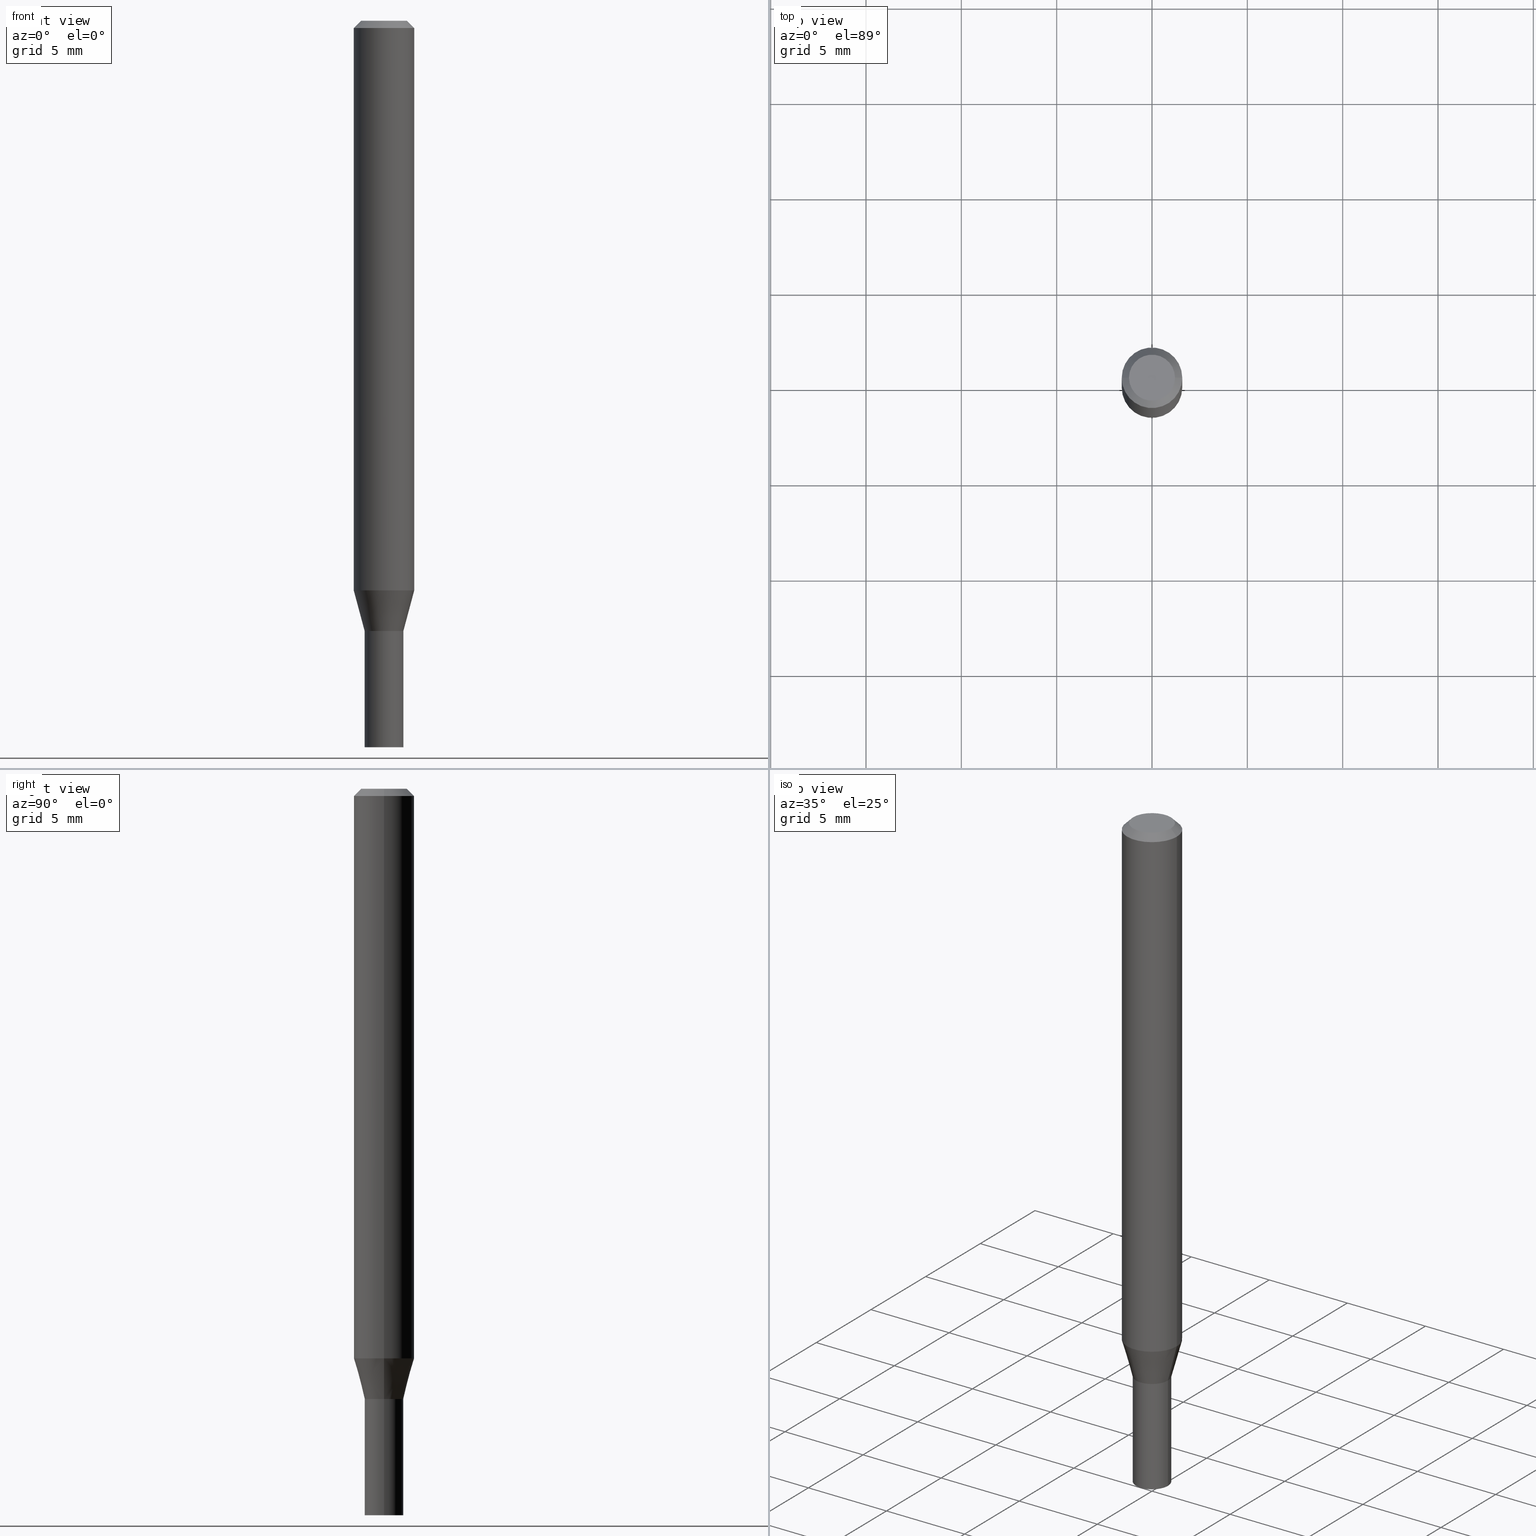
[diagram: canonical four-view strip — front | top / right | iso, engineering-drawing reading convention]
A machine part, canonical four-view strip (front | top / right | iso — engineering-drawing reading convention). The complete STEP part file that produces these views, byte-faithful:
ISO-10303-21;
HEADER;
FILE_DESCRIPTION (( 'STEP AP203' ),
    '1' );
FILE_NAME ('04172.STEP',
    '2024-03-14T17:11:14',
    ( '' ),
    ( '' ),
    'SwSTEP 2.0',
    'SolidWorks 2023',
    '' );
FILE_SCHEMA (( 'CONFIG_CONTROL_DESIGN' ));
ENDSEC;

DATA;
#1 = DIRECTION ( 'NONE',  ( -2.445468806185136597E-29, 3.491481338843145583E-15, 1.000000000000000000 ) ) ;
#2 = EDGE_LOOP ( 'NONE', ( #269, #187, #333, #446 ) ) ;
#3 = CARTESIAN_POINT ( 'NONE',  ( 3.668203209277705088E-31, -5.237222008264718399E-17, -0.01499999999999999944 ) ) ;
#4 = CLOSED_SHELL ( 'NONE', ( #90, #439, #376, #343 ) ) ;
#5 = VERTEX_POINT ( 'NONE', #423 ) ;
#6 = DIRECTION ( 'NONE',  ( 1.000000000000000000, -6.982962677686259611E-15, 0.000000000000000000 ) ) ;
#7 = CARTESIAN_POINT ( 'NONE',  ( 0.000000000000000000, 0.000000000000000000, 0.000000000000000000 ) ) ;
#8 = DIRECTION ( 'NONE',  ( 1.000000000000000000, -6.982962677686265922E-15, 4.876176775795935793E-29 ) ) ;
#9 = EDGE_CURVE ( 'NONE', #460, #421, #358, .T. ) ;
#10 = ORIENTED_EDGE ( 'NONE', *, *, #302, .T. ) ;
#11 = CARTESIAN_POINT ( 'NONE',  ( 3.081290695793272291E-29, -4.399266486942364120E-15, -1.260000000000000231 ) ) ;
#12 = COORDINATED_UNIVERSAL_TIME_OFFSET ( 5, 0, .BEHIND. ) ;
#13 = DIRECTION ( 'NONE',  ( 1.000000000000000000, -6.982962677686267499E-15, 4.852736867747366768E-29 ) ) ;
#14 = AXIS2_PLACEMENT_3D ( 'NONE', #225, #28, #289 ) ;
#15 = VECTOR ( 'NONE', #232, 39.37007874015748143 ) ;
#16 = DATE_AND_TIME ( #243, #429 ) ;
#17 = EDGE_CURVE ( 'NONE', #111, #280, #323, .T. ) ;
#18 = ORIENTED_EDGE ( 'NONE', *, *, #9, .F. ) ;
#19 = CIRCLE ( 'NONE', #210, 0.03950000000000000039 ) ;
#20 = AXIS2_PLACEMENT_3D ( 'NONE', #3, #157, #437 ) ;
#21 = ORIENTED_EDGE ( 'NONE', *, *, #171, .T. ) ;
#22 = CARTESIAN_POINT ( 'NONE',  ( 0.03999999999999964695, -4.676839253380391865E-15, -1.259500000000000286 ) ) ;
#23 = CC_DESIGN_APPROVAL ( #259, ( #173 ) ) ;
#24 = DIMENSIONAL_EXPONENTS ( 1.000000000000000000, 0.000000000000000000, 0.000000000000000000, 0.000000000000000000, 0.000000000000000000, 0.000000000000000000, 0.000000000000000000 ) ;
#25 = ORIENTED_EDGE ( 'NONE', *, *, #117, .T. ) ;
#26 = DIRECTION ( 'NONE',  ( 1.000000000000000000, -6.982962677686259611E-15, 0.000000000000000000 ) ) ;
#27 = DIRECTION ( 'NONE',  ( -2.445468806185136597E-29, 3.491481338843145583E-15, 1.000000000000000000 ) ) ;
#28 = DIRECTION ( 'NONE',  ( -2.445468806185136597E-29, 3.491481338843145583E-15, 1.000000000000000000 ) ) ;
#29 = VECTOR ( 'NONE', #33, 39.37007874015748143 ) ;
#30 = AXIS2_PLACEMENT_3D ( 'NONE', #207, #340, #341 ) ;
#31 = DIRECTION ( 'NONE',  ( -0.7071067811865530128, 2.468850131082314253E-15, -0.7071067811865420216 ) ) ;
#32 = CARTESIAN_POINT ( 'NONE',  ( -0.06250000000000000000, -1.635138303972230884E-15, -0.01499999999999999944 ) ) ;
#33 = DIRECTION ( 'NONE',  ( 0.7071067811861793118, -2.468850131078399925E-15, 0.7071067811869157227 ) ) ;
#34 = EDGE_CURVE ( 'NONE', #266, #100, #443, .T. ) ;
#35 = ORIENTED_EDGE ( 'NONE', *, *, #34, .T. ) ;
#36 = EDGE_LOOP ( 'NONE', ( #142, #35 ) ) ;
#37 = LINE ( 'NONE', #400, #308 ) ;
#38 = CIRCLE ( 'NONE', #381, 0.04000000000000019512 ) ;
#39 = CALENDAR_DATE ( 2024, 14, 3 ) ;
#40 = EDGE_CURVE ( 'NONE', #460, #111, #256, .T. ) ;
#41 = CARTESIAN_POINT ( 'NONE',  ( 2.875941884550600352E-29, -4.106082807561939527E-15, -1.176028856829701263 ) ) ;
#42 = PERSON_AND_ORGANIZATION ( #217, #442 ) ;
#43 = PLANE ( 'NONE',  #393 ) ;
#44 = CYLINDRICAL_SURFACE ( 'NONE', #284, 0.03999999999999992450 ) ;
#45 = EDGE_CURVE ( 'NONE', #63, #421, #226, .T. ) ;
#46 = APPROVAL_ROLE ( '' ) ;
#47 = CONICAL_SURFACE ( 'NONE', #20, 0.06250000000000000000, 0.7853981633974560506 ) ;
#48 = DIRECTION ( 'NONE',  ( -2.445468806185136597E-29, 3.491481338843145583E-15, 1.000000000000000000 ) ) ;
#49 = APPLICATION_CONTEXT ( 'configuration controlled 3d designs of mechanical parts and assemblies' ) ;
#50 = PRODUCT_DEFINITION ( 'UNKNOWN', '', #445, #96 ) ;
#51 = EDGE_CURVE ( 'NONE', #99, #421, #112, .T. ) ;
#52 = LINE ( 'NONE', #204, #355 ) ;
#53 = EDGE_LOOP ( 'NONE', ( #419, #424 ) ) ;
#54 = AXIS2_PLACEMENT_3D ( 'NONE', #69, #74, #26 ) ;
#55 = DIRECTION ( 'NONE',  ( -2.445468806185136877E-29, 3.491481338843145188E-15, 1.000000000000000000 ) ) ;
#56 = CC_DESIGN_APPROVAL ( #456, ( #50 ) ) ;
#57 = DIRECTION ( 'NONE',  ( 2.438088387897960049E-29, -3.491481338843145188E-15, -1.000000000000000000 ) ) ;
#58 = VERTEX_POINT ( 'NONE', #395 ) ;
#59 = PLANE ( 'NONE',  #189 ) ;
#60 = LINE ( 'NONE', #104, #441 ) ;
#61 = ADVANCED_FACE ( 'NONE', ( #182 ), #95, .T. ) ;
#62 = CIRCLE ( 'NONE', #93, 0.04000000000000000083 ) ;
#63 = VERTEX_POINT ( 'NONE', #145 ) ;
#64 = CARTESIAN_POINT ( 'NONE',  ( -0.03950000000000000039, -4.115952879143015858E-15, -1.260000000000000453 ) ) ;
#65 = VERTEX_POINT ( 'NONE', #32 ) ;
#66 = VERTEX_POINT ( 'NONE', #452 ) ;
#67 = CARTESIAN_POINT ( 'NONE',  ( -0.06250000000000000000, 4.440892098500626162E-16, -3.074334431409316114E-30 ) ) ;
#68 = DIRECTION ( 'NONE',  ( -2.445468806185136597E-29, 3.491481338843145583E-15, 1.000000000000000000 ) ) ;
#69 = CARTESIAN_POINT ( 'NONE',  ( 3.668203209277704895E-29, -5.237222008264718177E-15, -1.500000000000000222 ) ) ;
#70 = DIRECTION ( 'NONE',  ( -2.445468806185136877E-29, 3.491481338843145188E-15, 1.000000000000000000 ) ) ;
#71 = ORIENTED_EDGE ( 'NONE', *, *, #414, .F. ) ;
#72 = ORIENTED_EDGE ( 'NONE', *, *, #141, .T. ) ;
#73 = AXIS2_PLACEMENT_3D ( 'NONE', #331, #160, #301 ) ;
#74 = DIRECTION ( 'NONE',  ( -2.445468806185136597E-29, 3.491481338843145583E-15, 1.000000000000000000 ) ) ;
#75 = ORIENTED_EDGE ( 'NONE', *, *, #273, .F. ) ;
#76 = ORIENTED_EDGE ( 'NONE', *, *, #87, .T. ) ;
#77 = CARTESIAN_POINT ( 'NONE',  ( 3.081290695793272291E-29, -4.399266486942364120E-15, -1.260000000000000231 ) ) ;
#78 = SECURITY_CLASSIFICATION_LEVEL ( 'unclassified' ) ;
#79 = DIRECTION ( 'NONE',  ( -2.445468806185136597E-29, 3.491481338843145583E-15, 1.000000000000000000 ) ) ;
#80 = ADVANCED_FACE ( 'NONE', ( #147 ), #298, .T. ) ;
#81 = APPLICATION_PROTOCOL_DEFINITION ( 'international standard', 'config_control_design', 1994, #285 ) ;
#82 = DIRECTION ( 'NONE',  ( 1.000000000000000000, -6.982962677686270655E-15, 0.000000000000000000 ) ) ;
#83 = CIRCLE ( 'NONE', #30, 0.03950000000000000039 ) ;
#84 = FACE_OUTER_BOUND ( 'NONE', #216, .T. ) ;
#85 = CLOSED_SHELL ( 'NONE', ( #388, #313, #183, #268, #61, #80, #129, #203, #208, #140, #250, #260 ) ) ;
#86 = ORIENTED_EDGE ( 'NONE', *, *, #428, .T. ) ;
#87 = EDGE_CURVE ( 'NONE', #63, #378, #19, .T. ) ;
#88 = DIRECTION ( 'NONE',  ( -2.445468806185136597E-29, 3.491481338843145583E-15, 1.000000000000000000 ) ) ;
#89 = APPROVAL_DATE_TIME ( #198, #241 ) ;
#90 = ADVANCED_FACE ( 'NONE', ( #249 ), #176, .T. ) ;
#91 = DIRECTION ( 'NONE',  ( -2.445468806185136597E-29, 3.491481338843145583E-15, 1.000000000000000000 ) ) ;
#92 = CC_DESIGN_DATE_AND_TIME_ASSIGNMENT ( #404, #186, ( #173 ) ) ;
#93 = AXIS2_PLACEMENT_3D ( 'NONE', #242, #415, #372 ) ;
#94 =( GEOMETRIC_REPRESENTATION_CONTEXT ( 3 ) GLOBAL_UNCERTAINTY_ASSIGNED_CONTEXT ( ( #233 ) ) GLOBAL_UNIT_ASSIGNED_CONTEXT ( ( #200, #277, #295 ) ) REPRESENTATION_CONTEXT ( 'NONE', 'WORKASPACE' ) );
#95 = CONICAL_SURFACE ( 'NONE', #236, 0.04000000000000019512, 0.2617993877991497964 ) ;
#96 = DESIGN_CONTEXT ( 'detailed design', #285, 'design' ) ;
#97 = VECTOR ( 'NONE', #175, 39.37007874015748143 ) ;
#98 = DIRECTION ( 'NONE',  ( 1.000000000000000000, -6.982962677686259611E-15, 0.000000000000000000 ) ) ;
#99 = VERTEX_POINT ( 'NONE', #457 ) ;
#100 = VERTEX_POINT ( 'NONE', #105 ) ;
#101 = DIRECTION ( 'NONE',  ( -2.445468806185136597E-29, 3.491481338843145583E-15, 1.000000000000000000 ) ) ;
#102 = CARTESIAN_POINT ( 'NONE',  ( 3.081290695793273412E-29, -4.399266486942365698E-15, -1.260000000000000453 ) ) ;
#103 = CIRCLE ( 'NONE', #133, 0.04000000000000000083 ) ;
#104 = CARTESIAN_POINT ( 'NONE',  ( -0.04000000000000019512, -4.115049392638323005E-15, -1.260000000000000231 ) ) ;
#105 = CARTESIAN_POINT ( 'NONE',  ( -0.04749999999999999362, 3.578768372314206562E-16, -2.310480929501438287E-16 ) ) ;
#106 = LOCAL_TIME ( 13, 11, 14.00000000000000000, #134 ) ;
#107 = FACE_OUTER_BOUND ( 'NONE', #466, .T. ) ;
#108 = ORIENTED_EDGE ( 'NONE', *, *, #45, .F. ) ;
#109 = ORIENTED_EDGE ( 'NONE', *, *, #219, .T. ) ;
#110 = CARTESIAN_POINT ( 'NONE',  ( 0.000000000000000000, 0.000000000000000000, 0.000000000000000000 ) ) ;
#111 = VERTEX_POINT ( 'NONE', #218 ) ;
#112 = CIRCLE ( 'NONE', #122, 0.03999999999999964695 ) ;
#113 = ORIENTED_EDGE ( 'NONE', *, *, #224, .F. ) ;
#114 = VERTEX_POINT ( 'NONE', #150 ) ;
#115 = CIRCLE ( 'NONE', #54, 0.04000000000000000083 ) ;
#116 = ORIENTED_EDGE ( 'NONE', *, *, #171, .F. ) ;
#117 = EDGE_CURVE ( 'NONE', #111, #58, #374, .T. ) ;
#118 = CYLINDRICAL_SURFACE ( 'NONE', #411, 0.06250000000000000000 ) ;
#119 = COORDINATED_UNIVERSAL_TIME_OFFSET ( 5, 0, .BEHIND. ) ;
#120 = DIRECTION ( 'NONE',  ( 1.000000000000000000, -6.982962677686266711E-15, 4.876176775795935793E-29 ) ) ;
#121 = CALENDAR_DATE ( 2024, 14, 3 ) ;
#122 = AXIS2_PLACEMENT_3D ( 'NONE', #286, #287, #349 ) ;
#123 = PERSON_AND_ORGANIZATION ( #217, #442 ) ;
#124 = LINE ( 'NONE', #270, #15 ) ;
#125 = AXIS2_PLACEMENT_3D ( 'NONE', #194, #430, #264 ) ;
#126 = APPROVAL_ROLE ( '' ) ;
#127 = ORIENTED_EDGE ( 'NONE', *, *, #17, .T. ) ;
#128 = DIRECTION ( 'NONE',  ( -2.445468806185136597E-29, 3.491481338843145583E-15, 1.000000000000000000 ) ) ;
#129 = ADVANCED_FACE ( 'NONE', ( #455 ), #297, .T. ) ;
#130 = CC_DESIGN_PERSON_AND_ORGANIZATION_ASSIGNMENT ( #328, #396, ( #445 ) ) ;
#131 = DIRECTION ( 'NONE',  ( -2.445468806185136597E-29, 3.491481338843145583E-15, 1.000000000000000000 ) ) ;
#132 = FACE_OUTER_BOUND ( 'NONE', #385, .T. ) ;
#133 = AXIS2_PLACEMENT_3D ( 'NONE', #11, #1, #6 ) ;
#134 = COORDINATED_UNIVERSAL_TIME_OFFSET ( 5, 0, .BEHIND. ) ;
#135 = EDGE_CURVE ( 'NONE', #378, #99, #190, .T. ) ;
#136 = ORIENTED_EDGE ( 'NONE', *, *, #414, .T. ) ;
#137 = CARTESIAN_POINT ( 'NONE',  ( 3.081290695793273412E-29, -4.399266486942365698E-15, -1.260000000000000453 ) ) ;
#138 = FACE_OUTER_BOUND ( 'NONE', #453, .T. ) ;
#139 = AXIS2_PLACEMENT_3D ( 'NONE', #314, #417, #144 ) ;
#140 = ADVANCED_FACE ( 'NONE', ( #410 ), #197, .F. ) ;
#141 = EDGE_CURVE ( 'NONE', #5, #99, #124, .T. ) ;
#142 = ORIENTED_EDGE ( 'NONE', *, *, #461, .T. ) ;
#143 = FACE_OUTER_BOUND ( 'NONE', #383, .T. ) ;
#144 = DIRECTION ( 'NONE',  ( 1.000000000000000000, -6.982962677686266711E-15, 4.876176775795935793E-29 ) ) ;
#145 = CARTESIAN_POINT ( 'NONE',  ( 0.03950000000000000039, -4.675093512710973517E-15, -1.260000000000000453 ) ) ;
#146 = CYLINDRICAL_SURFACE ( 'NONE', #139, 0.03999999999999992450 ) ;
#147 = FACE_OUTER_BOUND ( 'NONE', #361, .T. ) ;
#148 = ORIENTED_EDGE ( 'NONE', *, *, #273, .T. ) ;
#149 = DIRECTION ( 'NONE',  ( -2.438088387897960049E-29, 3.491481338843145188E-15, 1.000000000000000000 ) ) ;
#150 = CARTESIAN_POINT ( 'NONE',  ( 0.04000000000000000083, -4.678584994049814947E-15, -1.260000000000000231 ) ) ;
#151 = DIRECTION ( 'NONE',  ( -2.445468806185136877E-29, 3.491481338843145188E-15, 1.000000000000000000 ) ) ;
#152 = AXIS2_PLACEMENT_3D ( 'NONE', #407, #88, #294 ) ;
#153 = DIRECTION ( 'NONE',  ( -2.445468806185136597E-29, 3.491481338843145583E-15, 1.000000000000000000 ) ) ;
#154 = LOCAL_TIME ( 13, 11, 14.00000000000000000, #12 ) ;
#155 = ORIENTED_EDGE ( 'NONE', *, *, #51, .F. ) ;
#156 = CC_DESIGN_PERSON_AND_ORGANIZATION_ASSIGNMENT ( #363, #365, ( #445 ) ) ;
#157 = DIRECTION ( 'NONE',  ( 2.445468806185136597E-29, -3.491481338843145583E-15, -1.000000000000000000 ) ) ;
#158 = CARTESIAN_POINT ( 'NONE',  ( -0.03950000000000000039, -4.118602106317125481E-15, -1.260000000000000453 ) ) ;
#159 = ORIENTED_EDGE ( 'NONE', *, *, #51, .T. ) ;
#160 = DIRECTION ( 'NONE',  ( -2.445468806185136597E-29, 3.491481338843145583E-15, 1.000000000000000000 ) ) ;
#161 = CIRCLE ( 'NONE', #222, 0.04749999999999999362 ) ;
#162 = CARTESIAN_POINT ( 'NONE',  ( 3.081290695793272291E-29, -4.399266486942364120E-15, -1.260000000000000231 ) ) ;
#163 = LENGTH_MEASURE_WITH_UNIT ( LENGTH_MEASURE( 0.02539999999999999897 ), #293 );
#164 = FACE_OUTER_BOUND ( 'NONE', #416, .T. ) ;
#165 = EDGE_CURVE ( 'NONE', #114, #321, #103, .T. ) ;
#166 = AXIS2_PLACEMENT_3D ( 'NONE', #364, #91, #436 ) ;
#167 = DIRECTION ( 'NONE',  ( 1.000000000000000000, -6.982962677686271444E-15, 0.000000000000000000 ) ) ;
#168 = CARTESIAN_POINT ( 'NONE',  ( 3.081290695793272291E-29, -4.399266486942364120E-15, -1.260000000000000231 ) ) ;
#169 = CC_DESIGN_PERSON_AND_ORGANIZATION_ASSIGNMENT ( #438, #239, ( #246 ) ) ;
#170 = CIRCLE ( 'NONE', #418, 0.03999999999999964695 ) ;
#171 = EDGE_CURVE ( 'NONE', #460, #5, #346, .T. ) ;
#172 = ORIENTED_EDGE ( 'NONE', *, *, #17, .F. ) ;
#173 = SECURITY_CLASSIFICATION ( '', '', #78 ) ;
#174 = CARTESIAN_POINT ( 'NONE',  ( 0.06250000000000000000, -4.811533449433679005E-16, -0.01499999999999999944 ) ) ;
#175 = DIRECTION ( 'NONE',  ( -2.445468806185136877E-29, 3.491481338843145188E-15, 1.000000000000000000 ) ) ;
#176 = CYLINDRICAL_SURFACE ( 'NONE', #334, 0.04000000000000000083 ) ;
#177 = DIRECTION ( 'NONE',  ( 1.000000000000000000, -6.982962677686271444E-15, 0.000000000000000000 ) ) ;
#178 = CARTESIAN_POINT ( 'NONE',  ( 3.576687321579069994E-29, -5.368277968210015545E-15, -1.500000000000000222 ) ) ;
#179 = ORIENTED_EDGE ( 'NONE', *, *, #428, .F. ) ;
#180 = ORIENTED_EDGE ( 'NONE', *, *, #188, .T. ) ;
#181 = ORIENTED_EDGE ( 'NONE', *, *, #450, .F. ) ;
#182 = FACE_OUTER_BOUND ( 'NONE', #213, .T. ) ;
#183 = ADVANCED_FACE ( 'NONE', ( #84 ), #47, .T. ) ;
#184 = EDGE_LOOP ( 'NONE', ( #181, #180, #127, #113 ) ) ;
#185 = DIRECTION ( 'NONE',  ( 1.000000000000000000, -6.982962677686274599E-15, 0.000000000000000000 ) ) ;
#186 = DATE_TIME_ROLE ( 'classification_date' ) ;
#187 = ORIENTED_EDGE ( 'NONE', *, *, #276, .T. ) ;
#188 = EDGE_CURVE ( 'NONE', #58, #111, #245, .T. ) ;
#189 = AXIS2_PLACEMENT_3D ( 'NONE', #377, #57, #247 ) ;
#190 = LINE ( 'NONE', #158, #324 ) ;
#191 = PERSON_AND_ORGANIZATION_ROLE ( 'classification_officer' ) ;
#192 = DATE_TIME_ROLE ( 'creation_date' ) ;
#193 = MANIFOLD_SOLID_BREP ( 'Body-Move/Copy2[2]', #85 ) ;
#194 = CARTESIAN_POINT ( 'NONE',  ( 3.668203209277705088E-31, -5.237222008264718399E-17, -0.01499999999999999944 ) ) ;
#195 = DIRECTION ( 'NONE',  ( -1.000000000000000000, 6.982962677686265922E-15, -4.876176775795935793E-29 ) ) ;
#196 = DATE_AND_TIME ( #405, #154 ) ;
#197 = PLANE ( 'NONE',  #464 ) ;
#198 = DATE_AND_TIME ( #265, #106 ) ;
#199 = AXIS2_PLACEMENT_3D ( 'NONE', #7, #272, #408 ) ;
#200 =( CONVERSION_BASED_UNIT ( 'INCH', #163 ) LENGTH_UNIT ( ) NAMED_UNIT ( #24 ) );
#201 = DIRECTION ( 'NONE',  ( 1.000000000000000000, -6.982962677686266711E-15, 4.876176775795935793E-29 ) ) ;
#202 = VECTOR ( 'NONE', #151, 39.37007874015748143 ) ;
#203 = ADVANCED_FACE ( 'NONE', ( #371 ), #317, .T. ) ;
#204 = CARTESIAN_POINT ( 'NONE',  ( 0.04000000000000000083, -2.793185071074506290E-16, 1.950470710318374387E-30 ) ) ;
#205 = AXIS2_PLACEMENT_3D ( 'NONE', #178, #149, #248 ) ;
#206 = LOCAL_TIME ( 13, 11, 14.00000000000000000, #360 ) ;
#207 = CARTESIAN_POINT ( 'NONE',  ( 3.081290695793273412E-29, -4.399266486942365698E-15, -1.260000000000000453 ) ) ;
#208 = ADVANCED_FACE ( 'NONE', ( #367 ), #43, .F. ) ;
#209 = ORIENTED_EDGE ( 'NONE', *, *, #299, .T. ) ;
#210 = AXIS2_PLACEMENT_3D ( 'NONE', #102, #27, #177 ) ;
#211 = DIRECTION ( 'NONE',  ( -2.445468806185136597E-29, 3.491481338843145583E-15, 1.000000000000000000 ) ) ;
#212 = AXIS2_PLACEMENT_3D ( 'NONE', #110, #101, #282 ) ;
#213 = EDGE_LOOP ( 'NONE', ( #21, #136, #394, #252 ) ) ;
#214 = DIRECTION ( 'NONE',  ( -0.2588190451025211281, 5.211531920934548675E-15, 0.9659258262890682012 ) ) ;
#215 = CARTESIAN_POINT ( 'NONE',  ( 0.04000000000000019512, -4.678584994049816524E-15, -1.260000000000000231 ) ) ;
#216 = EDGE_LOOP ( 'NONE', ( #373, #325, #109, #179 ) ) ;
#217 = PERSON ( 'UNSPECIFIED', 'UNSPECIFIED', 'UNSPECIFIED', ('UNSPECIFIED'), ('UNSPECIFIED'), ('UNSPECIFIED') ) ;
#218 = CARTESIAN_POINT ( 'NONE',  ( 0.06250000000000000000, -4.542517974917331985E-15, -1.176028856829701263 ) ) ;
#219 = EDGE_CURVE ( 'NONE', #280, #65, #339, .T. ) ;
#220 = DIRECTION ( 'NONE',  ( -2.445468806185136597E-29, 3.491481338843145583E-15, 1.000000000000000000 ) ) ;
#221 = ORIENTED_EDGE ( 'NONE', *, *, #45, .T. ) ;
#222 = AXIS2_PLACEMENT_3D ( 'NONE', #391, #397, #13 ) ;
#223 = ORIENTED_EDGE ( 'NONE', *, *, #9, .T. ) ;
#224 = EDGE_CURVE ( 'NONE', #65, #280, #454, .T. ) ;
#225 = CARTESIAN_POINT ( 'NONE',  ( 5.650209040381348270E-45, -8.067001049107153434E-31, -2.310480929501414128E-16 ) ) ;
#226 = LINE ( 'NONE', #261, #29 ) ;
#227 = VECTOR ( 'NONE', #70, 39.37007874015748143 ) ;
#228 = DIRECTION ( 'NONE',  ( -2.445468806185136597E-29, 3.491481338843145583E-15, 1.000000000000000000 ) ) ;
#229 = VECTOR ( 'NONE', #318, 39.37007874015748143 ) ;
#230 = CARTESIAN_POINT ( 'NONE',  ( 0.000000000000000000, 0.000000000000000000, 0.000000000000000000 ) ) ;
#231 = APPROVAL_STATUS ( 'not_yet_approved' ) ;
#232 = DIRECTION ( 'NONE',  ( -2.445468806185136877E-29, 3.491481338843145188E-15, 1.000000000000000000 ) ) ;
#233 = UNCERTAINTY_MEASURE_WITH_UNIT (LENGTH_MEASURE( 1.000000000000000082E-05 ), #200, 'distance_accuracy_value', 'NONE');
#234 = ORIENTED_EDGE ( 'NONE', *, *, #399, .F. ) ;
#235 = CARTESIAN_POINT ( 'NONE',  ( 3.316907271900976096E-16, 0.04749999999999999362, -2.813694100701201521E-16 ) ) ;
#236 = AXIS2_PLACEMENT_3D ( 'NONE', #77, #359, #185 ) ;
#237 = APPLICATION_PROTOCOL_DEFINITION ( 'international standard', 'config_control_design', 1994, #49 ) ;
#238 = CARTESIAN_POINT ( 'NONE',  ( 0.000000000000000000, 0.000000000000000000, 0.000000000000000000 ) ) ;
#239 = PERSON_AND_ORGANIZATION_ROLE ( 'design_owner' ) ;
#240 = CC_DESIGN_APPROVAL ( #241, ( #445 ) ) ;
#241 = APPROVAL ( #231, 'UNSPECIFIED' ) ;
#242 = CARTESIAN_POINT ( 'NONE',  ( 3.668203209277704895E-29, -5.237222008264718177E-15, -1.500000000000000222 ) ) ;
#243 = CALENDAR_DATE ( 2024, 14, 3 ) ;
#244 = APPROVAL_DATE_TIME ( #16, #259 ) ;
#245 = CIRCLE ( 'NONE', #275, 0.06250000000000000000 ) ;
#246 = PRODUCT ( '04172', '04172', '', ( #370 ) ) ;
#247 = DIRECTION ( 'NONE',  ( -1.000000000000000000, 6.982962677686265922E-15, -4.876176775795935793E-29 ) ) ;
#248 = DIRECTION ( 'NONE',  ( 1.000000000000000000, -6.982962677686265922E-15, 4.876176775795935793E-29 ) ) ;
#249 = FACE_OUTER_BOUND ( 'NONE', #2, .T. ) ;
#250 = ADVANCED_FACE ( 'NONE', ( #432 ), #290, .T. ) ;
#251 = VECTOR ( 'NONE', #31, 39.37007874015748143 ) ;
#252 = ORIENTED_EDGE ( 'NONE', *, *, #40, .F. ) ;
#253 = ORIENTED_EDGE ( 'NONE', *, *, #141, .F. ) ;
#254 = VECTOR ( 'NONE', #392, 39.37007874015748143 ) ;
#255 = CARTESIAN_POINT ( 'NONE',  ( 0.04000000000000019512, -4.678584994049816524E-15, -1.260000000000000231 ) ) ;
#256 = LINE ( 'NONE', #215, #254 ) ;
#257 = AXIS2_PLACEMENT_3D ( 'NONE', #403, #303, #274 ) ;
#258 = ORIENTED_EDGE ( 'NONE', *, *, #276, .F. ) ;
#259 = APPROVAL ( #330, 'UNSPECIFIED' ) ;
#260 = ADVANCED_FACE ( 'NONE', ( #368 ), #44, .F. ) ;
#261 = CARTESIAN_POINT ( 'NONE',  ( 0.03950000000000000039, -4.675093512710973517E-15, -1.260000000000000453 ) ) ;
#262 = APPROVAL_PERSON_ORGANIZATION ( #123, #241, #440 ) ;
#263 = EDGE_LOOP ( 'NONE', ( #253, #116, #223, #384 ) ) ;
#264 = DIRECTION ( 'NONE',  ( -1.000000000000000000, 6.982962677686266711E-15, 0.000000000000000000 ) ) ;
#265 = CALENDAR_DATE ( 2024, 14, 3 ) ;
#266 = VERTEX_POINT ( 'NONE', #337 ) ;
#267 = CARTESIAN_POINT ( 'NONE',  ( 3.081290695793272291E-29, -4.399266486942364120E-15, -1.260000000000000231 ) ) ;
#268 = ADVANCED_FACE ( 'NONE', ( #164 ), #118, .T. ) ;
#269 = ORIENTED_EDGE ( 'NONE', *, *, #406, .T. ) ;
#270 = CARTESIAN_POINT ( 'NONE',  ( -0.03999999999999992450, 2.842170943040395379E-16, -1.967574036101958655E-30 ) ) ;
#271 = DIRECTION ( 'NONE',  ( 1.000000000000000000, -6.982962677686266711E-15, 4.876176775795935793E-29 ) ) ;
#272 = DIRECTION ( 'NONE',  ( 0.000000000000000000, 0.000000000000000000, 1.000000000000000000 ) ) ;
#273 = EDGE_CURVE ( 'NONE', #5, #460, #38, .T. ) ;
#274 = DIRECTION ( 'NONE',  ( 1.000000000000000000, -6.982962677686274599E-15, 0.000000000000000000 ) ) ;
#275 = AXIS2_PLACEMENT_3D ( 'NONE', #41, #131, #82 ) ;
#276 = EDGE_CURVE ( 'NONE', #66, #321, #37, .T. ) ;
#277 =( NAMED_UNIT ( * ) PLANE_ANGLE_UNIT ( ) SI_UNIT ( $, .RADIAN. ) );
#278 = FACE_OUTER_BOUND ( 'NONE', #345, .T. ) ;
#279 = ORIENTED_EDGE ( 'NONE', *, *, #420, .F. ) ;
#280 = VERTEX_POINT ( 'NONE', #342 ) ;
#281 = CARTESIAN_POINT ( 'NONE',  ( -0.06250000000000000000, 3.840629472727444916E-16, -0.01499999999999999944 ) ) ;
#282 = DIRECTION ( 'NONE',  ( 1.000000000000000000, -6.982962677686265922E-15, 4.876176775795935793E-29 ) ) ;
#283 = DIRECTION ( 'NONE',  ( 1.000000000000000000, -6.982962677686265922E-15, 4.876176775795935793E-29 ) ) ;
#284 = AXIS2_PLACEMENT_3D ( 'NONE', #238, #48, #201 ) ;
#285 = APPLICATION_CONTEXT ( 'configuration controlled 3d designs of mechanical parts and assemblies' ) ;
#286 = CARTESIAN_POINT ( 'NONE',  ( 3.080067961390180050E-29, -4.397520746272943406E-15, -1.259500000000000286 ) ) ;
#287 = DIRECTION ( 'NONE',  ( -2.445468806185136597E-29, 3.491481338843145583E-15, 1.000000000000000000 ) ) ;
#288 = ORIENTED_EDGE ( 'NONE', *, *, #461, .F. ) ;
#289 = DIRECTION ( 'NONE',  ( 1.000000000000000000, -6.982962677686267499E-15, 4.852736867747366768E-29 ) ) ;
#290 = CONICAL_SURFACE ( 'NONE', #152, 0.03950000000000000039, 0.7853981633969275844 ) ;
#291 = DIRECTION ( 'NONE',  ( 1.000000000000000000, -6.982962677686274599E-15, 0.000000000000000000 ) ) ;
#292 = PERSON_AND_ORGANIZATION ( #217, #442 ) ;
#293 =( LENGTH_UNIT ( ) NAMED_UNIT ( * ) SI_UNIT ( $, .METRE. ) );
#294 = DIRECTION ( 'NONE',  ( 1.000000000000000000, -6.982962677686271444E-15, 0.000000000000000000 ) ) ;
#295 =( NAMED_UNIT ( * ) SI_UNIT ( $, .STERADIAN. ) SOLID_ANGLE_UNIT ( ) );
#296 = ORIENTED_EDGE ( 'NONE', *, *, #450, .T. ) ;
#297 = CYLINDRICAL_SURFACE ( 'NONE', #305, 0.06250000000000000000 ) ;
#298 = CONICAL_SURFACE ( 'NONE', #344, 0.04000000000000019512, 0.2617993877991497964 ) ;
#299 = EDGE_CURVE ( 'NONE', #66, #458, #62, .T. ) ;
#300 = AXIS2_PLACEMENT_3D ( 'NONE', #137, #211, #167 ) ;
#301 = DIRECTION ( 'NONE',  ( 1.000000000000000000, -6.982962677686266711E-15, 0.000000000000000000 ) ) ;
#302 = EDGE_CURVE ( 'NONE', #458, #114, #52, .T. ) ;
#303 = DIRECTION ( 'NONE',  ( -2.445468806185136597E-29, 3.491481338843145583E-15, 1.000000000000000000 ) ) ;
#304 = CC_DESIGN_PERSON_AND_ORGANIZATION_ASSIGNMENT ( #292, #402, ( #50 ) ) ;
#305 = AXIS2_PLACEMENT_3D ( 'NONE', #230, #128, #271 ) ;
#306 = DIRECTION ( 'NONE',  ( -2.445468806185136877E-29, 3.491481338843145188E-15, 1.000000000000000000 ) ) ;
#307 = EDGE_CURVE ( 'NONE', #378, #63, #83, .T. ) ;
#308 = VECTOR ( 'NONE', #55, 39.37007874015748143 ) ;
#309 = PRODUCT_DEFINITION_SHAPE ( 'NONE', 'NONE',  #50 ) ;
#310 = ORIENTED_EDGE ( 'NONE', *, *, #406, .F. ) ;
#311 = APPROVAL_PERSON_ORGANIZATION ( #42, #259, #46 ) ;
#312 = LINE ( 'NONE', #281, #251 ) ;
#313 = ADVANCED_FACE ( 'NONE', ( #132 ), #435, .T. ) ;
#314 = CARTESIAN_POINT ( 'NONE',  ( 0.000000000000000000, 0.000000000000000000, 0.000000000000000000 ) ) ;
#315 = DIRECTION ( 'NONE',  ( -2.445468806185136597E-29, 3.491481338843145583E-15, 1.000000000000000000 ) ) ;
#316 = DIRECTION ( 'NONE',  ( 1.000000000000000000, -6.982962677686270655E-15, 0.000000000000000000 ) ) ;
#317 = CONICAL_SURFACE ( 'NONE', #125, 0.06250000000000000000, 0.7853981633974560506 ) ;
#318 = DIRECTION ( 'NONE',  ( 0.7071067811865530128, -7.319954787623274978E-15, -0.7071067811865420216 ) ) ;
#319 = CARTESIAN_POINT ( 'NONE',  ( 0.03999999999999992450, -2.793185071074501359E-16, 1.950470710318370534E-30 ) ) ;
#320 = ORIENTED_EDGE ( 'NONE', *, *, #307, .T. ) ;
#321 = VERTEX_POINT ( 'NONE', #379 ) ;
#322 = EDGE_LOOP ( 'NONE', ( #447, #320, #221, #155 ) ) ;
#323 = LINE ( 'NONE', #427, #227 ) ;
#324 = VECTOR ( 'NONE', #434, 39.37007874015748143 ) ;
#325 = ORIENTED_EDGE ( 'NONE', *, *, #426, .T. ) ;
#326 = DIRECTION ( 'NONE',  ( -2.438088387897960049E-29, 3.491481338843145188E-15, 1.000000000000000000 ) ) ;
#327 = LOCAL_TIME ( 13, 11, 14.00000000000000000, #119 ) ;
#328 = PERSON_AND_ORGANIZATION ( #217, #442 ) ;
#329 = DIRECTION ( 'NONE',  ( 2.438088387897960049E-29, -3.491481338843145188E-15, -1.000000000000000000 ) ) ;
#330 = APPROVAL_STATUS ( 'not_yet_approved' ) ;
#331 = CARTESIAN_POINT ( 'NONE',  ( 3.668203209277705088E-31, -5.237222008264718399E-17, -0.01499999999999999944 ) ) ;
#332 = APPROVAL_DATE_TIME ( #196, #456 ) ;
#333 = ORIENTED_EDGE ( 'NONE', *, *, #165, .F. ) ;
#334 = AXIS2_PLACEMENT_3D ( 'NONE', #354, #315, #283 ) ;
#335 = CC_DESIGN_PERSON_AND_ORGANIZATION_ASSIGNMENT ( #369, #191, ( #173 ) ) ;
#336 = APPROVAL_PERSON_ORGANIZATION ( #433, #456, #126 ) ;
#337 = CARTESIAN_POINT ( 'NONE',  ( 0.04749999999999999362, -4.035134999187582567E-16, -2.310480929501388490E-16 ) ) ;
#338 = APPROVAL_STATUS ( 'not_yet_approved' ) ;
#339 = CIRCLE ( 'NONE', #73, 0.06250000000000000000 ) ;
#340 = DIRECTION ( 'NONE',  ( -2.445468806185136597E-29, 3.491481338843145583E-15, 1.000000000000000000 ) ) ;
#341 = DIRECTION ( 'NONE',  ( 1.000000000000000000, -6.982962677686271444E-15, 0.000000000000000000 ) ) ;
#342 = CARTESIAN_POINT ( 'NONE',  ( 0.06250000000000000000, -4.888073874380388472E-16, -0.01499999999999999944 ) ) ;
#343 = ADVANCED_FACE ( 'NONE', ( #138 ), #59, .F. ) ;
#344 = AXIS2_PLACEMENT_3D ( 'NONE', #463, #153, #291 ) ;
#345 = EDGE_LOOP ( 'NONE', ( #258, #209, #10, #234 ) ) ;
#346 = CIRCLE ( 'NONE', #257, 0.04000000000000019512 ) ;
#347 = DIRECTION ( 'NONE',  ( 1.000000000000000000, -6.982962677686273021E-15, 0.000000000000000000 ) ) ;
#348 = MANIFOLD_SOLID_BREP ( 'Body-Move/Copy2[1]', #4 ) ;
#349 = DIRECTION ( 'NONE',  ( 1.000000000000000000, -6.982962677686273021E-15, 0.000000000000000000 ) ) ;
#350 = PLANE ( 'NONE',  #205 ) ;
#351 = ORIENTED_EDGE ( 'NONE', *, *, #399, .T. ) ;
#352 = ORIENTED_EDGE ( 'NONE', *, *, #426, .F. ) ;
#353 = CARTESIAN_POINT ( 'NONE',  ( 3.080067961390180050E-29, -4.397520746272943406E-15, -1.259500000000000286 ) ) ;
#354 = CARTESIAN_POINT ( 'NONE',  ( 0.000000000000000000, 0.000000000000000000, 0.000000000000000000 ) ) ;
#355 = VECTOR ( 'NONE', #306, 39.37007874015748143 ) ;
#356 = ORIENTED_EDGE ( 'NONE', *, *, #40, .T. ) ;
#357 = ORIENTED_EDGE ( 'NONE', *, *, #135, .T. ) ;
#358 = LINE ( 'NONE', #319, #202 ) ;
#359 = DIRECTION ( 'NONE',  ( -2.445468806185136597E-29, 3.491481338843145583E-15, 1.000000000000000000 ) ) ;
#360 = COORDINATED_UNIVERSAL_TIME_OFFSET ( 5, 0, .BEHIND. ) ;
#361 = EDGE_LOOP ( 'NONE', ( #71, #148, #356, #425 ) ) ;
#362 = DIRECTION ( 'NONE',  ( 1.000000000000000000, -6.982962677686274599E-15, 0.000000000000000000 ) ) ;
#363 = PERSON_AND_ORGANIZATION ( #217, #442 ) ;
#364 = CARTESIAN_POINT ( 'NONE',  ( 3.668203209277705088E-31, -5.237222008264718399E-17, -0.01499999999999999944 ) ) ;
#365 = PERSON_AND_ORGANIZATION_ROLE ( 'creator' ) ;
#366 = DATE_AND_TIME ( #39, #327 ) ;
#367 = FACE_OUTER_BOUND ( 'NONE', #36, .T. ) ;
#368 = FACE_OUTER_BOUND ( 'NONE', #263, .T. ) ;
#369 = PERSON_AND_ORGANIZATION ( #217, #442 ) ;
#370 = MECHANICAL_CONTEXT ( 'NONE', #49, 'mechanical' ) ;
#371 = FACE_OUTER_BOUND ( 'NONE', #449, .T. ) ;
#372 = DIRECTION ( 'NONE',  ( 1.000000000000000000, -6.982962677686259611E-15, 0.000000000000000000 ) ) ;
#373 = ORIENTED_EDGE ( 'NONE', *, *, #34, .F. ) ;
#374 = CIRCLE ( 'NONE', #413, 0.06250000000000000000 ) ;
#375 = SHAPE_DEFINITION_REPRESENTATION ( #309, #409 ) ;
#376 = ADVANCED_FACE ( 'NONE', ( #278 ), #448, .T. ) ;
#377 = CARTESIAN_POINT ( 'NONE',  ( 2.793185071074814439E-16, 0.03999999999999560157, -1.260000000000000453 ) ) ;
#378 = VERTEX_POINT ( 'NONE', #64 ) ;
#379 = CARTESIAN_POINT ( 'NONE',  ( -0.04000000000000000083, -4.534027153299501216E-15, -1.260000000000000231 ) ) ;
#380 = PRODUCT_RELATED_PRODUCT_CATEGORY ( 'detail', '', ( #246 ) ) ;
#381 = AXIS2_PLACEMENT_3D ( 'NONE', #267, #79, #362 ) ;
#382 = LINE ( 'NONE', #67, #97 ) ;
#383 = EDGE_LOOP ( 'NONE', ( #310, #390 ) ) ;
#384 = ORIENTED_EDGE ( 'NONE', *, *, #420, .T. ) ;
#385 = EDGE_LOOP ( 'NONE', ( #76, #357, #279, #108 ) ) ;
#386 = LINE ( 'NONE', #174, #229 ) ;
#387 = CARTESIAN_POINT ( 'NONE',  ( 2.875941884550600352E-29, -4.106082807561939527E-15, -1.176028856829701263 ) ) ;
#388 = ADVANCED_FACE ( 'NONE', ( #107 ), #146, .F. ) ;
#389 = ORIENTED_EDGE ( 'NONE', *, *, #224, .T. ) ;
#390 = ORIENTED_EDGE ( 'NONE', *, *, #299, .F. ) ;
#391 = CARTESIAN_POINT ( 'NONE',  ( 5.650209040381348270E-45, -8.067001049107153434E-31, -2.310480929501414128E-16 ) ) ;
#392 = DIRECTION ( 'NONE',  ( 0.2588190451025211281, 1.565188264969623940E-15, 0.9659258262890682012 ) ) ;
#393 = AXIS2_PLACEMENT_3D ( 'NONE', #235, #329, #195 ) ;
#394 = ORIENTED_EDGE ( 'NONE', *, *, #117, .F. ) ;
#395 = CARTESIAN_POINT ( 'NONE',  ( -0.06250000000000000000, -3.661993597711876911E-15, -1.176028856829701263 ) ) ;
#396 = PERSON_AND_ORGANIZATION_ROLE ( 'design_supplier' ) ;
#397 = DIRECTION ( 'NONE',  ( -2.445468806185136597E-29, 3.491481338843145583E-15, 1.000000000000000000 ) ) ;
#398 = CARTESIAN_POINT ( 'NONE',  ( 0.000000000000000000, 0.000000000000000000, 0.000000000000000000 ) ) ;
#399 = EDGE_CURVE ( 'NONE', #321, #114, #444, .T. ) ;
#400 = CARTESIAN_POINT ( 'NONE',  ( -0.04000000000000000083, 2.842170943040400803E-16, -1.967574036101962509E-30 ) ) ;
#401 = AXIS2_PLACEMENT_3D ( 'NONE', #168, #451, #98 ) ;
#402 = PERSON_AND_ORGANIZATION_ROLE ( 'creator' ) ;
#403 = CARTESIAN_POINT ( 'NONE',  ( 3.081290695793272291E-29, -4.399266486942364120E-15, -1.260000000000000231 ) ) ;
#404 = DATE_AND_TIME ( #121, #206 ) ;
#405 = CALENDAR_DATE ( 2024, 14, 3 ) ;
#406 = EDGE_CURVE ( 'NONE', #458, #66, #115, .T. ) ;
#407 = CARTESIAN_POINT ( 'NONE',  ( 3.081290695793273412E-29, -4.399266486942365698E-15, -1.260000000000000453 ) ) ;
#408 = DIRECTION ( 'NONE',  ( 1.000000000000000000, 0.000000000000000000, 0.000000000000000000 ) ) ;
#409 = ADVANCED_BREP_SHAPE_REPRESENTATION ( '04172', ( #348, #193, #199 ), #94 ) ;
#410 = FACE_OUTER_BOUND ( 'NONE', #53, .T. ) ;
#411 = AXIS2_PLACEMENT_3D ( 'NONE', #398, #228, #120 ) ;
#412 = CC_DESIGN_SECURITY_CLASSIFICATION ( #173, ( #445 ) ) ;
#413 = AXIS2_PLACEMENT_3D ( 'NONE', #387, #68, #316 ) ;
#414 = EDGE_CURVE ( 'NONE', #5, #58, #60, .T. ) ;
#415 = DIRECTION ( 'NONE',  ( -2.445468806185136597E-29, 3.491481338843145583E-15, 1.000000000000000000 ) ) ;
#416 = EDGE_LOOP ( 'NONE', ( #25, #296, #431, #172 ) ) ;
#417 = DIRECTION ( 'NONE',  ( -2.445468806185136597E-29, 3.491481338843145583E-15, 1.000000000000000000 ) ) ;
#418 = AXIS2_PLACEMENT_3D ( 'NONE', #353, #220, #347 ) ;
#419 = ORIENTED_EDGE ( 'NONE', *, *, #87, .F. ) ;
#420 = EDGE_CURVE ( 'NONE', #421, #99, #170, .T. ) ;
#421 = VERTEX_POINT ( 'NONE', #22 ) ;
#422 = CARTESIAN_POINT ( 'NONE',  ( 0.04000000000000000083, -5.516540515372169003E-15, -1.500000000000000222 ) ) ;
#423 = CARTESIAN_POINT ( 'NONE',  ( -0.04000000000000019512, -3.888521495175099563E-15, -1.260000000000000231 ) ) ;
#424 = ORIENTED_EDGE ( 'NONE', *, *, #307, .F. ) ;
#425 = ORIENTED_EDGE ( 'NONE', *, *, #188, .F. ) ;
#426 = EDGE_CURVE ( 'NONE', #266, #280, #386, .T. ) ;
#427 = CARTESIAN_POINT ( 'NONE',  ( 0.06250000000000000000, -4.364351673553916694E-16, 3.047610484872459871E-30 ) ) ;
#428 = EDGE_CURVE ( 'NONE', #100, #65, #312, .T. ) ;
#429 = LOCAL_TIME ( 13, 11, 14.00000000000000000, #465 ) ;
#430 = DIRECTION ( 'NONE',  ( 2.445468806185136597E-29, -3.491481338843145583E-15, -1.000000000000000000 ) ) ;
#431 = ORIENTED_EDGE ( 'NONE', *, *, #219, .F. ) ;
#432 = FACE_OUTER_BOUND ( 'NONE', #322, .T. ) ;
#433 = PERSON_AND_ORGANIZATION ( #217, #442 ) ;
#434 = DIRECTION ( 'NONE',  ( -0.7071067811861793118, 7.493145998869024141E-15, 0.7071067811869157227 ) ) ;
#435 = CONICAL_SURFACE ( 'NONE', #300, 0.03950000000000000039, 0.7853981633969275844 ) ;
#436 = DIRECTION ( 'NONE',  ( 1.000000000000000000, -6.982962677686266711E-15, 0.000000000000000000 ) ) ;
#437 = DIRECTION ( 'NONE',  ( -1.000000000000000000, 6.982962677686266711E-15, 0.000000000000000000 ) ) ;
#438 = PERSON_AND_ORGANIZATION ( #217, #442 ) ;
#439 = ADVANCED_FACE ( 'NONE', ( #143 ), #350, .F. ) ;
#440 = APPROVAL_ROLE ( '' ) ;
#441 = VECTOR ( 'NONE', #214, 39.37007874015748143 ) ;
#442 = ORGANIZATION ( 'UNSPECIFIED', 'UNSPECIFIED', '' ) ;
#443 = CIRCLE ( 'NONE', #14, 0.04749999999999999362 ) ;
#444 = CIRCLE ( 'NONE', #401, 0.04000000000000000083 ) ;
#445 = PRODUCT_DEFINITION_FORMATION_WITH_SPECIFIED_SOURCE ( 'ANY', '', #246, .NOT_KNOWN. ) ;
#446 = ORIENTED_EDGE ( 'NONE', *, *, #302, .F. ) ;
#447 = ORIENTED_EDGE ( 'NONE', *, *, #135, .F. ) ;
#448 = CYLINDRICAL_SURFACE ( 'NONE', #212, 0.04000000000000000083 ) ;
#449 = EDGE_LOOP ( 'NONE', ( #352, #288, #86, #389 ) ) ;
#450 = EDGE_CURVE ( 'NONE', #58, #65, #382, .T. ) ;
#451 = DIRECTION ( 'NONE',  ( -2.445468806185136597E-29, 3.491481338843145583E-15, 1.000000000000000000 ) ) ;
#452 = CARTESIAN_POINT ( 'NONE',  ( -0.04000000000000000083, -4.534027153299501216E-15, -1.500000000000000222 ) ) ;
#453 = EDGE_LOOP ( 'NONE', ( #462, #351 ) ) ;
#454 = CIRCLE ( 'NONE', #166, 0.06250000000000000000 ) ;
#455 = FACE_OUTER_BOUND ( 'NONE', #184, .T. ) ;
#456 = APPROVAL ( #338, 'UNSPECIFIED' ) ;
#457 = CARTESIAN_POINT ( 'NONE',  ( -0.03999999999999964695, -4.113303651968905446E-15, -1.259500000000000286 ) ) ;
#458 = VERTEX_POINT ( 'NONE', #422 ) ;
#459 = CC_DESIGN_DATE_AND_TIME_ASSIGNMENT ( #366, #192, ( #50 ) ) ;
#460 = VERTEX_POINT ( 'NONE', #255 ) ;
#461 = EDGE_CURVE ( 'NONE', #100, #266, #161, .T. ) ;
#462 = ORIENTED_EDGE ( 'NONE', *, *, #165, .T. ) ;
#463 = CARTESIAN_POINT ( 'NONE',  ( 3.081290695793272291E-29, -4.399266486942364120E-15, -1.260000000000000231 ) ) ;
#464 = AXIS2_PLACEMENT_3D ( 'NONE', #162, #326, #8 ) ;
#465 = COORDINATED_UNIVERSAL_TIME_OFFSET ( 5, 0, .BEHIND. ) ;
#466 = EDGE_LOOP ( 'NONE', ( #75, #72, #159, #18 ) ) ;
ENDSEC;
END-ISO-10303-21;
